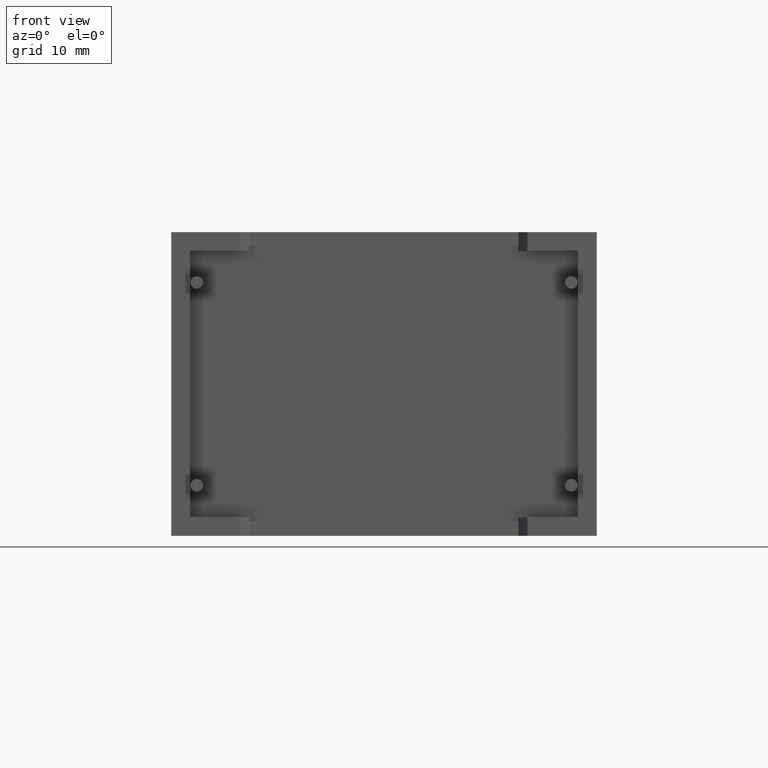
[diagram: clean part render]
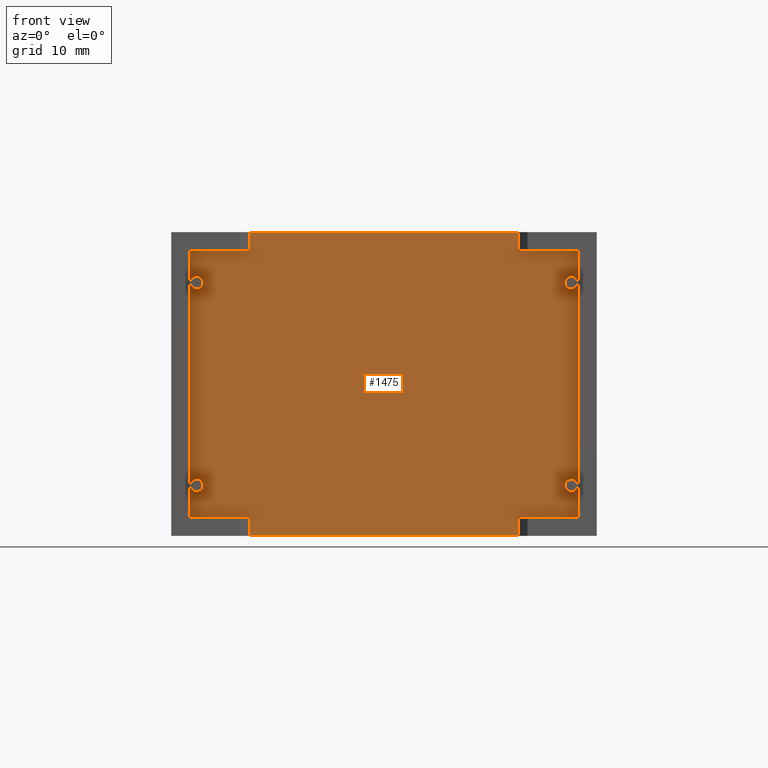
[diagram: same view with one face highlighted and labeled with its STEP entity id]
A machine part, front view. The second image highlights one B-rep face of the part: STEP entity #1475.
In plain terms, the highlighted planar face has unit normal (0, -1, 0).
Its self-contained STEP definition (entity closure, byte-faithful):
#9 = AXIS2_PLACEMENT_3D ( 'NONE', #678, #691, #1927 ) ;
#12 = LINE ( 'NONE', #1471, #2019 ) ;
#21 = VECTOR ( 'NONE', #1588, 1000.000000000000000 ) ;
#41 = CARTESIAN_POINT ( 'NONE',  ( 7.850000000000001400, 1.328880000000003800, 0.0000000000000000000 ) ) ;
#44 = ORIENTED_EDGE ( 'NONE', *, *, #1546, .T. ) ;
#56 = EDGE_CURVE ( 'NONE', #3113, #668, #1266, .T. ) ;
#59 = FACE_OUTER_BOUND ( 'NONE', #3121, .T. ) ;
#110 = LINE ( 'NONE', #881, #2536 ) ;
#113 = VECTOR ( 'NONE', #1412, 1000.000000000000000 ) ;
#121 = ORIENTED_EDGE ( 'NONE', *, *, #1601, .T. ) ;
#136 = EDGE_CURVE ( 'NONE', #2271, #730, #2990, .T. ) ;
#140 = CARTESIAN_POINT ( 'NONE',  ( 40.73131199999999600, 1.328880000000000100, 28.53131200000000000 ) ) ;
#164 = CIRCLE ( 'NONE', #713, 0.6250000000000005600 ) ;
#198 = VECTOR ( 'NONE', #3030, 1000.000000000000000 ) ;
#209 = ORIENTED_EDGE ( 'NONE', *, *, #2126, .F. ) ;
#213 = DIRECTION ( 'NONE',  ( -1.000000000000000000, -1.128537577308331900E-016, 0.0000000000000000000 ) ) ;
#215 = CARTESIAN_POINT ( 'NONE',  ( 2.550000000000000300, 1.328880000000000100, 4.425000000000005200 ) ) ;
#217 = CARTESIAN_POINT ( 'NONE',  ( 40.05000000000000400, 1.328880000000000100, 25.97500000000000100 ) ) ;
#255 = DIRECTION ( 'NONE',  ( 0.0000000000000000000, -0.0000000000000000000, -1.000000000000000000 ) ) ;
#285 = EDGE_LOOP ( 'NONE', ( #2949, #555 ) ) ;
#291 = VERTEX_POINT ( 'NONE', #2413 ) ;
#306 = CARTESIAN_POINT ( 'NONE',  ( 7.850000000000001400, 1.328880000000003800, 0.0000000000000000000 ) ) ;
#321 = EDGE_CURVE ( 'NONE', #1916, #1402, #164, .T. ) ;
#331 = DIRECTION ( 'NONE',  ( -0.0000000000000000000, -0.0000000000000000000, 1.000000000000000000 ) ) ;
#352 = CARTESIAN_POINT ( 'NONE',  ( 34.74999999999999300, 1.328880000000003800, 1.868687999999999500 ) ) ;
#354 = VERTEX_POINT ( 'NONE', #217 ) ;
#362 = CARTESIAN_POINT ( 'NONE',  ( 40.05000000000000400, 1.328880000000000100, 5.675000000000006000 ) ) ;
#374 = EDGE_CURVE ( 'NONE', #2022, #1770, #2103, .T. ) ;
#454 = CARTESIAN_POINT ( 'NONE',  ( 7.850000000000001400, 1.328880000000003800, 0.0000000000000000000 ) ) ;
#477 = FACE_BOUND ( 'NONE', #1860, .T. ) ;
#532 = AXIS2_PLACEMENT_3D ( 'NONE', #2309, #1347, #2765 ) ;
#555 = ORIENTED_EDGE ( 'NONE', *, *, #2372, .F. ) ;
#577 = VERTEX_POINT ( 'NONE', #352 ) ;
#579 = DIRECTION ( 'NONE',  ( 0.0000000000000000000, 0.0000000000000000000, 1.000000000000000000 ) ) ;
#583 = EDGE_CURVE ( 'NONE', #2637, #2175, #840, .T. ) ;
#592 = AXIS2_PLACEMENT_3D ( 'NONE', #1581, #632, #2790 ) ;
#603 = LINE ( 'NONE', #679, #113 ) ;
#625 = LINE ( 'NONE', #2455, #1190 ) ;
#632 = DIRECTION ( 'NONE',  ( 0.0000000000000000000, -1.000000000000000000, 0.0000000000000000000 ) ) ;
#643 = CARTESIAN_POINT ( 'NONE',  ( 1.868687999999999700, 1.328880000000000100, 1.868687999999999900 ) ) ;
#656 = LINE ( 'NONE', #2294, #1924 ) ;
#657 = DIRECTION ( 'NONE',  ( 1.000000000000000000, 0.0000000000000000000, 0.0000000000000000000 ) ) ;
#668 = VERTEX_POINT ( 'NONE', #2071 ) ;
#678 = CARTESIAN_POINT ( 'NONE',  ( 2.550000000000000300, 1.328880000000000100, 25.35000000000000100 ) ) ;
#679 = CARTESIAN_POINT ( 'NONE',  ( 1.868687999999999700, 1.328880000000000100, 1.868687999999999900 ) ) ;
#688 = CIRCLE ( 'NONE', #2655, 0.6250000000000005600 ) ;
#691 = DIRECTION ( 'NONE',  ( 0.0000000000000000000, -1.000000000000000000, 0.0000000000000000000 ) ) ;
#709 = DIRECTION ( 'NONE',  ( 0.0000000000000000000, 0.0000000000000000000, -1.000000000000000000 ) ) ;
#711 = CARTESIAN_POINT ( 'NONE',  ( 40.05000000000000400, 1.328880000000000100, 25.35000000000000100 ) ) ;
#713 = AXIS2_PLACEMENT_3D ( 'NONE', #2659, #2384, #709 ) ;
#727 = DIRECTION ( 'NONE',  ( -0.0000000000000000000, -0.0000000000000000000, 1.000000000000000000 ) ) ;
#730 = VERTEX_POINT ( 'NONE', #2604 ) ;
#739 = VECTOR ( 'NONE', #331, 1000.000000000000000 ) ;
#751 = DIRECTION ( 'NONE',  ( 0.0000000000000000000, -1.000000000000000000, 0.0000000000000000000 ) ) ;
#769 = LINE ( 'NONE', #2912, #1132 ) ;
#772 = LINE ( 'NONE', #849, #1125 ) ;
#814 = DIRECTION ( 'NONE',  ( 0.0000000000000000000, -1.000000000000000000, 0.0000000000000000000 ) ) ;
#816 = VERTEX_POINT ( 'NONE', #3101 ) ;
#840 = LINE ( 'NONE', #1110, #198 ) ;
#849 = CARTESIAN_POINT ( 'NONE',  ( 1.868687999999999700, 1.328880000000000100, 28.53131200000000000 ) ) ;
#857 = DIRECTION ( 'NONE',  ( 0.0000000000000000000, 0.0000000000000000000, -1.000000000000000000 ) ) ;
#881 = CARTESIAN_POINT ( 'NONE',  ( 40.73131199999999600, 1.328880000000000100, 1.868687999999999900 ) ) ;
#888 = ORIENTED_EDGE ( 'NONE', *, *, #1975, .F. ) ;
#908 = CIRCLE ( 'NONE', #9, 0.6250000000000005600 ) ;
#946 = EDGE_CURVE ( 'NONE', #1695, #577, #12, .T. ) ;
#968 = DIRECTION ( 'NONE',  ( -1.000000000000000000, 0.0000000000000000000, 0.0000000000000000000 ) ) ;
#974 = DIRECTION ( 'NONE',  ( 0.0000000000000000000, 0.0000000000000000000, 1.000000000000000000 ) ) ;
#980 = CIRCLE ( 'NONE', #1576, 0.6250000000000005600 ) ;
#1033 = CARTESIAN_POINT ( 'NONE',  ( 7.850000000000001400, 1.328880000000003800, 28.53131199999999300 ) ) ;
#1036 = ORIENTED_EDGE ( 'NONE', *, *, #1849, .F. ) ;
#1048 = AXIS2_PLACEMENT_3D ( 'NONE', #2219, #751, #1243 ) ;
#1054 = ORIENTED_EDGE ( 'NONE', *, *, #2208, .T. ) ;
#1061 = ORIENTED_EDGE ( 'NONE', *, *, #2711, .T. ) ;
#1110 = CARTESIAN_POINT ( 'NONE',  ( 21.30000000000000100, 1.328880000000005400, 30.39999999999999900 ) ) ;
#1125 = VECTOR ( 'NONE', #857, 1000.000000000000000 ) ;
#1132 = VECTOR ( 'NONE', #213, 1000.000000000000000 ) ;
#1144 = EDGE_LOOP ( 'NONE', ( #1547, #3042 ) ) ;
#1186 = VERTEX_POINT ( 'NONE', #2762 ) ;
#1190 = VECTOR ( 'NONE', #968, 1000.000000000000000 ) ;
#1210 = VERTEX_POINT ( 'NONE', #1855 ) ;
#1214 = VECTOR ( 'NONE', #657, 1000.000000000000000 ) ;
#1240 = PLANE ( 'NONE',  #2770 ) ;
#1243 = DIRECTION ( 'NONE',  ( 0.0000000000000000000, 0.0000000000000000000, -1.000000000000000000 ) ) ;
#1266 = LINE ( 'NONE', #140, #21 ) ;
#1270 = FACE_BOUND ( 'NONE', #2209, .T. ) ;
#1278 = CIRCLE ( 'NONE', #592, 0.6250000000000005600 ) ;
#1303 = ORIENTED_EDGE ( 'NONE', *, *, #583, .T. ) ;
#1304 = CARTESIAN_POINT ( 'NONE',  ( 34.74999999999999300, 1.328880000000003800, 30.39999999999999900 ) ) ;
#1347 = DIRECTION ( 'NONE',  ( 0.0000000000000000000, -1.000000000000000000, 0.0000000000000000000 ) ) ;
#1367 = EDGE_CURVE ( 'NONE', #577, #2048, #603, .T. ) ;
#1402 = VERTEX_POINT ( 'NONE', #215 ) ;
#1412 = DIRECTION ( 'NONE',  ( 1.000000000000000000, 0.0000000000000000000, 0.0000000000000000000 ) ) ;
#1459 = CARTESIAN_POINT ( 'NONE',  ( 0.0000000000000000000, 1.328880000000000100, 0.0000000000000000000 ) ) ;
#1471 = CARTESIAN_POINT ( 'NONE',  ( 34.74999999999999300, 1.328880000000003800, 0.0000000000000000000 ) ) ;
#1475 = ADVANCED_FACE ( 'NONE', ( #1702, #59, #477, #2559, #1270 ), #1240, .T. ) ;
#1508 = EDGE_CURVE ( 'NONE', #1535, #1210, #625, .T. ) ;
#1525 = DIRECTION ( 'NONE',  ( -0.0000000000000000000, -0.0000000000000000000, 1.000000000000000000 ) ) ;
#1535 = VERTEX_POINT ( 'NONE', #1033 ) ;
#1536 = CARTESIAN_POINT ( 'NONE',  ( 40.73131199999999600, 1.328880000000000100, 1.868687999999999900 ) ) ;
#1546 = EDGE_CURVE ( 'NONE', #1210, #1186, #772, .T. ) ;
#1547 = ORIENTED_EDGE ( 'NONE', *, *, #136, .F. ) ;
#1576 = AXIS2_PLACEMENT_3D ( 'NONE', #2940, #2962, #974 ) ;
#1581 = CARTESIAN_POINT ( 'NONE',  ( 40.05000000000000400, 1.328880000000000100, 25.35000000000000100 ) ) ;
#1588 = DIRECTION ( 'NONE',  ( -1.000000000000000000, 0.0000000000000000000, 0.0000000000000000000 ) ) ;
#1599 = LINE ( 'NONE', #306, #2267 ) ;
#1601 = EDGE_CURVE ( 'NONE', #668, #2637, #656, .T. ) ;
#1683 = CIRCLE ( 'NONE', #1048, 0.6250000000000005600 ) ;
#1695 = VERTEX_POINT ( 'NONE', #2075 ) ;
#1702 = FACE_BOUND ( 'NONE', #1144, .T. ) ;
#1742 = ORIENTED_EDGE ( 'NONE', *, *, #321, .F. ) ;
#1755 = DIRECTION ( 'NONE',  ( -0.0000000000000000000, -0.0000000000000000000, 1.000000000000000000 ) ) ;
#1770 = VERTEX_POINT ( 'NONE', #2588 ) ;
#1782 = EDGE_CURVE ( 'NONE', #730, #2271, #908, .T. ) ;
#1831 = ORIENTED_EDGE ( 'NONE', *, *, #374, .F. ) ;
#1849 = EDGE_CURVE ( 'NONE', #1695, #2022, #769, .T. ) ;
#1855 = CARTESIAN_POINT ( 'NONE',  ( 1.868687999999999700, 1.328880000000000100, 28.53131200000000000 ) ) ;
#1860 = EDGE_LOOP ( 'NONE', ( #1742, #2818 ) ) ;
#1910 = CARTESIAN_POINT ( 'NONE',  ( 2.550000000000000300, 1.328880000000000100, 5.675000000000006000 ) ) ;
#1916 = VERTEX_POINT ( 'NONE', #1910 ) ;
#1924 = VECTOR ( 'NONE', #1525, 1000.000000000000000 ) ;
#1927 = DIRECTION ( 'NONE',  ( 0.0000000000000000000, 0.0000000000000000000, -1.000000000000000000 ) ) ;
#1945 = CARTESIAN_POINT ( 'NONE',  ( 40.73131199999999600, 1.328880000000000100, 28.53131200000000000 ) ) ;
#1953 = CIRCLE ( 'NONE', #2755, 0.6250000000000005600 ) ;
#1956 = ORIENTED_EDGE ( 'NONE', *, *, #56, .T. ) ;
#1962 = EDGE_CURVE ( 'NONE', #1402, #1916, #1683, .T. ) ;
#1975 = EDGE_CURVE ( 'NONE', #2782, #816, #980, .T. ) ;
#2019 = VECTOR ( 'NONE', #727, 1000.000000000000000 ) ;
#2022 = VERTEX_POINT ( 'NONE', #41 ) ;
#2031 = EDGE_CURVE ( 'NONE', #816, #2782, #1953, .T. ) ;
#2048 = VERTEX_POINT ( 'NONE', #1536 ) ;
#2071 = CARTESIAN_POINT ( 'NONE',  ( 34.74999999999999300, 1.328880000000003800, 28.53131199999999300 ) ) ;
#2075 = CARTESIAN_POINT ( 'NONE',  ( 34.74999999999999300, 1.328880000000003800, 0.0000000000000000000 ) ) ;
#2103 = LINE ( 'NONE', #454, #739 ) ;
#2126 = EDGE_CURVE ( 'NONE', #1535, #2175, #1599, .T. ) ;
#2139 = ORIENTED_EDGE ( 'NONE', *, *, #2031, .F. ) ;
#2161 = ORIENTED_EDGE ( 'NONE', *, *, #1367, .T. ) ;
#2175 = VERTEX_POINT ( 'NONE', #3033 ) ;
#2208 = EDGE_CURVE ( 'NONE', #1186, #1770, #2703, .T. ) ;
#2209 = EDGE_LOOP ( 'NONE', ( #888, #2139 ) ) ;
#2219 = CARTESIAN_POINT ( 'NONE',  ( 2.550000000000000300, 1.328880000000000100, 5.050000000000006000 ) ) ;
#2267 = VECTOR ( 'NONE', #1755, 1000.000000000000000 ) ;
#2271 = VERTEX_POINT ( 'NONE', #2356 ) ;
#2294 = CARTESIAN_POINT ( 'NONE',  ( 34.74999999999999300, 1.328880000000003800, 0.0000000000000000000 ) ) ;
#2309 = CARTESIAN_POINT ( 'NONE',  ( 2.550000000000000300, 1.328880000000000100, 25.35000000000000100 ) ) ;
#2322 = DIRECTION ( 'NONE',  ( 0.0000000000000000000, 0.0000000000000000000, 1.000000000000000000 ) ) ;
#2356 = CARTESIAN_POINT ( 'NONE',  ( 2.550000000000000300, 1.328880000000000100, 25.97500000000000100 ) ) ;
#2372 = EDGE_CURVE ( 'NONE', #291, #354, #688, .T. ) ;
#2384 = DIRECTION ( 'NONE',  ( 0.0000000000000000000, -1.000000000000000000, 0.0000000000000000000 ) ) ;
#2403 = DIRECTION ( 'NONE',  ( 0.0000000000000000000, -1.000000000000000000, 0.0000000000000000000 ) ) ;
#2413 = CARTESIAN_POINT ( 'NONE',  ( 40.05000000000000400, 1.328880000000000100, 24.72500000000000100 ) ) ;
#2455 = CARTESIAN_POINT ( 'NONE',  ( 40.73131199999999600, 1.328880000000000100, 28.53131200000000000 ) ) ;
#2536 = VECTOR ( 'NONE', #2322, 1000.000000000000000 ) ;
#2559 = FACE_BOUND ( 'NONE', #285, .T. ) ;
#2580 = ORIENTED_EDGE ( 'NONE', *, *, #1508, .T. ) ;
#2588 = CARTESIAN_POINT ( 'NONE',  ( 7.850000000000001400, 1.328880000000003800, 1.868687999999999500 ) ) ;
#2604 = CARTESIAN_POINT ( 'NONE',  ( 2.550000000000000300, 1.328880000000000100, 24.72500000000000100 ) ) ;
#2637 = VERTEX_POINT ( 'NONE', #1304 ) ;
#2655 = AXIS2_PLACEMENT_3D ( 'NONE', #711, #2403, #2890 ) ;
#2659 = CARTESIAN_POINT ( 'NONE',  ( 2.550000000000000300, 1.328880000000000100, 5.050000000000006000 ) ) ;
#2682 = DIRECTION ( 'NONE',  ( 0.0000000000000000000, -1.000000000000000000, 0.0000000000000000000 ) ) ;
#2703 = LINE ( 'NONE', #643, #1214 ) ;
#2711 = EDGE_CURVE ( 'NONE', #2048, #3113, #110, .T. ) ;
#2723 = EDGE_CURVE ( 'NONE', #354, #291, #1278, .T. ) ;
#2726 = CARTESIAN_POINT ( 'NONE',  ( 40.05000000000000400, 1.328880000000000100, 5.050000000000006000 ) ) ;
#2755 = AXIS2_PLACEMENT_3D ( 'NONE', #2726, #814, #579 ) ;
#2762 = CARTESIAN_POINT ( 'NONE',  ( 1.868687999999999700, 1.328880000000000100, 1.868687999999999900 ) ) ;
#2765 = DIRECTION ( 'NONE',  ( 0.0000000000000000000, 0.0000000000000000000, -1.000000000000000000 ) ) ;
#2770 = AXIS2_PLACEMENT_3D ( 'NONE', #1459, #2682, #255 ) ;
#2782 = VERTEX_POINT ( 'NONE', #362 ) ;
#2790 = DIRECTION ( 'NONE',  ( 0.0000000000000000000, 0.0000000000000000000, -1.000000000000000000 ) ) ;
#2818 = ORIENTED_EDGE ( 'NONE', *, *, #1962, .F. ) ;
#2890 = DIRECTION ( 'NONE',  ( 0.0000000000000000000, 0.0000000000000000000, -1.000000000000000000 ) ) ;
#2912 = CARTESIAN_POINT ( 'NONE',  ( 21.30000000000000100, 1.328880000000005400, 0.0000000000000000000 ) ) ;
#2940 = CARTESIAN_POINT ( 'NONE',  ( 40.05000000000000400, 1.328880000000000100, 5.050000000000006000 ) ) ;
#2949 = ORIENTED_EDGE ( 'NONE', *, *, #2723, .F. ) ;
#2962 = DIRECTION ( 'NONE',  ( 0.0000000000000000000, -1.000000000000000000, 0.0000000000000000000 ) ) ;
#2990 = CIRCLE ( 'NONE', #532, 0.6250000000000005600 ) ;
#3020 = ORIENTED_EDGE ( 'NONE', *, *, #946, .T. ) ;
#3030 = DIRECTION ( 'NONE',  ( -1.000000000000000000, -1.128537577308331900E-016, 0.0000000000000000000 ) ) ;
#3033 = CARTESIAN_POINT ( 'NONE',  ( 7.850000000000001400, 1.328880000000003800, 30.39999999999999900 ) ) ;
#3042 = ORIENTED_EDGE ( 'NONE', *, *, #1782, .F. ) ;
#3101 = CARTESIAN_POINT ( 'NONE',  ( 40.05000000000000400, 1.328880000000000100, 4.425000000000005200 ) ) ;
#3113 = VERTEX_POINT ( 'NONE', #1945 ) ;
#3121 = EDGE_LOOP ( 'NONE', ( #3020, #2161, #1061, #1956, #121, #1303, #209, #2580, #44, #1054, #1831, #1036 ) ) ;